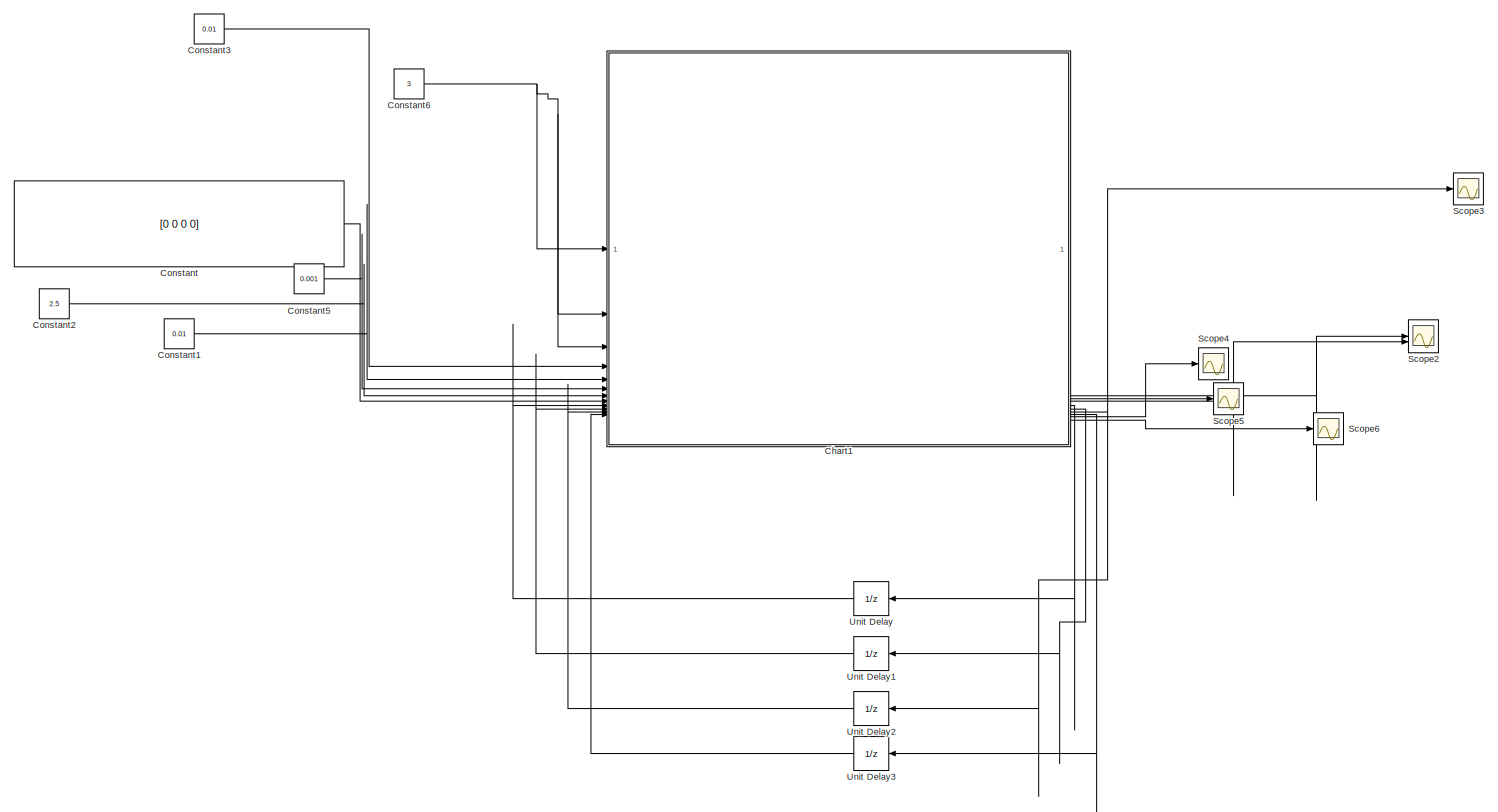
[diagram: root canvas - part 1/1, most of the canvas]
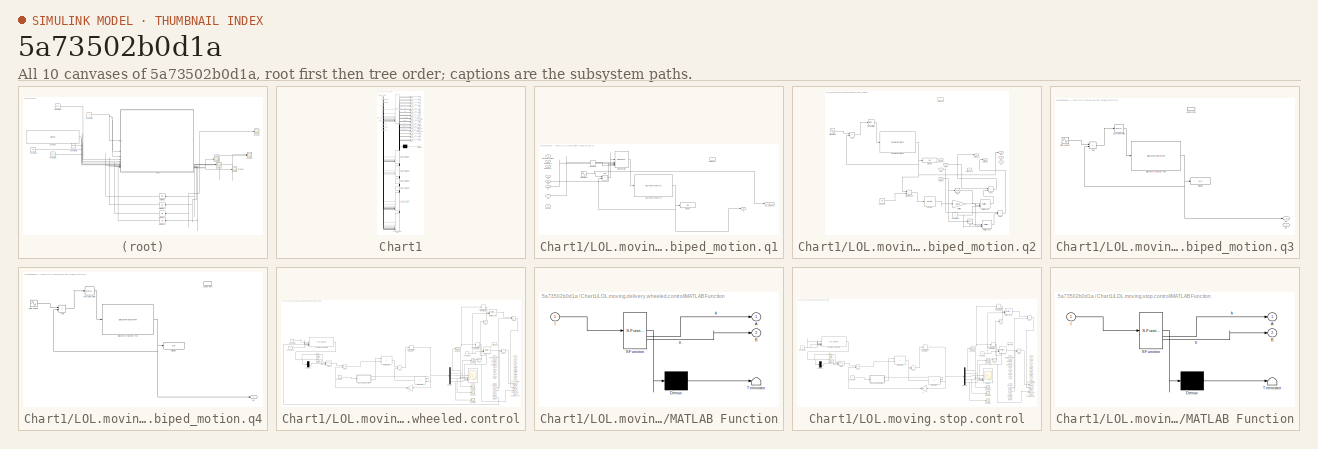
[diagram: thumbnail index - all 10 canvases of the model, root first then tree order]
MODEL slx_5a73502b0d1a
KIND model
CONFIG AbsTol = auto
CONFIG EnableMultiTasking = off
CONFIG FixedStep = auto
CONFIG MaxStep = auto
CONFIG MinStep = auto
CONFIG RelTol = 1e-3
CONFIG SampleTimeConstraint = Unconstrained
CONFIG SolverName = VariableStepAuto
CONFIG StartTime = 0.0
CONFIG StopTime = 10.0
BLOCK [SubSystem] Chart1
  ErrorFcn = Stateflow.Translate.translate
  PermitHierarchicalResolution = ExplicitOnly
  SFBlockType = Chart
  TreatAsAtomicUnit = on
BLOCK [Demux] Chart1/ Demux 
  Outputs = 1
BLOCK [Merge] Chart1/ Merge 
  Inputs = 4
BLOCK [Merge] Chart1/ Merge 1
  Inputs = 4
BLOCK [Merge] Chart1/ Merge 10
  Inputs = 3
BLOCK [Merge] Chart1/ Merge 11
  Inputs = 3
BLOCK [Merge] Chart1/ Merge 12
  Inputs = 3
BLOCK [Merge] Chart1/ Merge 13
  Inputs = 3
BLOCK [Merge] Chart1/ Merge 14
  Inputs = 3
BLOCK [Merge] Chart1/ Merge 2
  Inputs = 4
BLOCK [Merge] Chart1/ Merge 3
  Inputs = 4
BLOCK [Merge] Chart1/ Merge 4
  Inputs = 4
BLOCK [Merge] Chart1/ Merge 5
BLOCK [Merge] Chart1/ Merge 6
  Inputs = 3
BLOCK [Merge] Chart1/ Merge 7
  Inputs = 4
BLOCK [Merge] Chart1/ Merge 8
  Inputs = 3
BLOCK [Merge] Chart1/ Merge 9
  Inputs = 3
BLOCK [S-Function] Chart1/ SFunction 
  EnableBusSupport = on
  FunctionName = sf_sfun
  PortCounts = [12 16]
  SFcnIsStateOwnerBlock = off
  SFunctionDeploymentMode = off
  Tag = Stateflow S-Function 6
BLOCK [Terminator] Chart1/ Terminator 
BLOCK [SubSystem] Chart1/LOL.moving.delivery.biped_motion.q1
  PreDeleteFcn = Stateflow.SLINSF.SimulinkMan.removePreDeleteFcn
  UndoDeleteFcn = Stateflow.SLINSF.SimulinkMan.restorePreDeleteFcn
BLOCK [ActionPort] Chart1/LOL.moving.delivery.biped_motion.q1/Action Port
  CopyFcn = Stateflow.SLINSF.SimulinkMan.removeBlockPreDeleteFcn
  PreDeleteFcn = Stateflow.SLINSF.SimulinkMan.unsafePredeleteFcn
BLOCK [Sum] Chart1/LOL.moving.delivery.biped_motion.q1/Add
  IconShape = rectangular
  Inputs = +-
BLOCK [Constant] Chart1/LOL.moving.delivery.biped_motion.q1/Constant
BLOCK [DiscreteTransferFcn] Chart1/LOL.moving.delivery.biped_motion.q1/Discrete Transfer Fcn
  Denominator = [1 -1.161 0.1678 -0.006671]
  InputPortMap = u0
  Numerator = [0 0.2564 -0.03482 0.001414]
  SampleTime = 0.1
BLOCK [Display] Chart1/LOL.moving.delivery.biped_motion.q1/Display
  Decimation = 1
BLOCK [Reference] Chart1/LOL.moving.delivery.biped_motion.q1/PID Controller  REF=slpidlib/PID Controller
  LibrarySourceBlock = simulink/Continuous/PID Controller
  SourceBlock = slpidlib/PID Controller
  SourceType = PID 1dof
BLOCK [Sin] Chart1/LOL.moving.delivery.biped_motion.q1/Sine Wave
  Amplitude = 20*pi/180
  SampleTime = 0.1
  SineType = Sample based
BLOCK [Inport] Chart1/LOL.moving.delivery.biped_motion.q1/Ts
  Port = 4
BLOCK [Inport] Chart1/LOL.moving.delivery.biped_motion.q1/desired_height
BLOCK [Inport] Chart1/LOL.moving.delivery.biped_motion.q1/desired_x
  Port = 2
BLOCK [Inport] Chart1/LOL.moving.delivery.biped_motion.q1/desired_y
  Port = 3
BLOCK [Inport] Chart1/LOL.moving.delivery.biped_motion.q1/kd
  Port = 5
BLOCK [Inport] Chart1/LOL.moving.delivery.biped_motion.q1/ki
  Port = 6
BLOCK [Inport] Chart1/LOL.moving.delivery.biped_motion.q1/kp
  Port = 7
BLOCK [Outport] Chart1/LOL.moving.delivery.biped_motion.q1/q1
BLOCK [Outport] Chart1/LOL.moving.delivery.biped_motion.q1/q1_desired
  Port = 2
BLOCK [Inport] Chart1/LOL.moving.delivery.biped_motion.q1/sensor
  Port = 8
BLOCK [SubSystem] Chart1/LOL.moving.delivery.biped_motion.q2
  PreDeleteFcn = Stateflow.SLINSF.SimulinkMan.removePreDeleteFcn
  UndoDeleteFcn = Stateflow.SLINSF.SimulinkMan.restorePreDeleteFcn
BLOCK [ActionPort] Chart1/LOL.moving.delivery.biped_motion.q2/Action Port
  CopyFcn = Stateflow.SLINSF.SimulinkMan.removeBlockPreDeleteFcn
  PreDeleteFcn = Stateflow.SLINSF.SimulinkMan.unsafePredeleteFcn
BLOCK [Sum] Chart1/LOL.moving.delivery.biped_motion.q2/Add
  IconShape = rectangular
  Inputs = +-
BLOCK [Sum] Chart1/LOL.moving.delivery.biped_motion.q2/Add1
  IconShape = rectangular
BLOCK [Sum] Chart1/LOL.moving.delivery.biped_motion.q2/Add2
  IconShape = rectangular
BLOCK [Constant] Chart1/LOL.moving.delivery.biped_motion.q2/Constant
  Value = 0.5
BLOCK [Constant] Chart1/LOL.moving.delivery.biped_motion.q2/Constant1
  Value = 0
BLOCK [Trigonometry] Chart1/LOL.moving.delivery.biped_motion.q2/Cos
  Operator = cos
BLOCK [Reference] Chart1/LOL.moving.delivery.biped_motion.q2/Counter  REF=dspswit3/Counter
  SourceBlock = dspswit3/Counter
  SourceType = Counter
BLOCK [DiscreteTransferFcn] Chart1/LOL.moving.delivery.biped_motion.q2/Discrete Transfer Fcn
  Denominator = [1 -1.161 0.1678 -0.006671]
  InputPortMap = u0
  Numerator = [0 0.2564 -0.03482 0.001414]
  SampleTime = 0.1
BLOCK [Display] Chart1/LOL.moving.delivery.biped_motion.q2/Display
  Decimation = 1
BLOCK [RelationalOperator] Chart1/LOL.moving.delivery.biped_motion.q2/GreaterThan
  InputSameDT = off
  Operator = >
  OutDataTypeStr = boolean
  RndMeth = Simplest
BLOCK [Gain] Chart1/LOL.moving.delivery.biped_motion.q2/Multiply
  Gain = 0.654
BLOCK [Reference] Chart1/LOL.moving.delivery.biped_motion.q2/Multiply-Add  REF=hdlsllib/HDL Operations/Multiply-Add
  SourceBlock = hdlsllib/HDL Operations/Multiply-Add
  SourceType = Multiply-Add
BLOCK [Reference] Chart1/LOL.moving.delivery.biped_motion.q2/Multiply-Add1  REF=hdlsllib/HDL Operations/Multiply-Add
  SourceBlock = hdlsllib/HDL Operations/Multiply-Add
  SourceType = Multiply-Add
BLOCK [Reference] Chart1/LOL.moving.delivery.biped_motion.q2/PID Controller  REF=slpidlib/PID Controller
  LibrarySourceBlock = simulink/Continuous/PID Controller
  SourceBlock = slpidlib/PID Controller
  SourceType = PID 1dof
BLOCK [Trigonometry] Chart1/LOL.moving.delivery.biped_motion.q2/Sin
BLOCK [Sin] Chart1/LOL.moving.delivery.biped_motion.q2/Sine Wave
  Amplitude = 30*pi/180
  Bias = 30*pi/180
  Offset = 2
  SampleTime = 0.1
  SineType = Sample based
BLOCK [Inport] Chart1/LOL.moving.delivery.biped_motion.q2/curr_phi
  Port = 4
BLOCK [Inport] Chart1/LOL.moving.delivery.biped_motion.q2/curr_x
  Port = 2
BLOCK [Inport] Chart1/LOL.moving.delivery.biped_motion.q2/curr_y
  Port = 3
BLOCK [Outport] Chart1/LOL.moving.delivery.biped_motion.q2/current_phi
  Port = 3
BLOCK [Outport] Chart1/LOL.moving.delivery.biped_motion.q2/current_x
BLOCK [Outport] Chart1/LOL.moving.delivery.biped_motion.q2/current_y
  Port = 2
BLOCK [Outport] Chart1/LOL.moving.delivery.biped_motion.q2/q2
  Port = 4
BLOCK [Outport] Chart1/LOL.moving.delivery.biped_motion.q2/q3
  Port = 5
BLOCK [Outport] Chart1/LOL.moving.delivery.biped_motion.q2/q4
  Port = 6
BLOCK [Inport] Chart1/LOL.moving.delivery.biped_motion.q2/sensor
BLOCK [SubSystem] Chart1/LOL.moving.delivery.biped_motion.q3
  PreDeleteFcn = Stateflow.SLINSF.SimulinkMan.removePreDeleteFcn
  UndoDeleteFcn = Stateflow.SLINSF.SimulinkMan.restorePreDeleteFcn
BLOCK [ActionPort] Chart1/LOL.moving.delivery.biped_motion.q3/Action Port
  CopyFcn = Stateflow.SLINSF.SimulinkMan.removeBlockPreDeleteFcn
  PreDeleteFcn = Stateflow.SLINSF.SimulinkMan.unsafePredeleteFcn
BLOCK [Sum] Chart1/LOL.moving.delivery.biped_motion.q3/Add
  IconShape = rectangular
  Inputs = +-
BLOCK [DiscreteTransferFcn] Chart1/LOL.moving.delivery.biped_motion.q3/Discrete Transfer Fcn
  Denominator = [1 -1.161 0.1678 -0.006671]
  InputPortMap = u0
  Numerator = [0 0.2564 -0.03482 0.001414]
  SampleTime = 0.1
BLOCK [Display] Chart1/LOL.moving.delivery.biped_motion.q3/Display
  Decimation = 1
BLOCK [Reference] Chart1/LOL.moving.delivery.biped_motion.q3/PID Controller  REF=slpidlib/PID Controller
  LibrarySourceBlock = simulink/Continuous/PID Controller
  SourceBlock = slpidlib/PID Controller
  SourceType = PID 1dof
BLOCK [Sin] Chart1/LOL.moving.delivery.biped_motion.q3/Sine Wave
  Amplitude = 20*pi/180
  Offset = 10
  SampleTime = 0.1
  SineType = Sample based
BLOCK [Outport] Chart1/LOL.moving.delivery.biped_motion.q3/q3
BLOCK [Outport] Chart1/LOL.moving.delivery.biped_motion.q3/q4
  Port = 2
BLOCK [SubSystem] Chart1/LOL.moving.delivery.biped_motion.q4
  PreDeleteFcn = Stateflow.SLINSF.SimulinkMan.removePreDeleteFcn
  UndoDeleteFcn = Stateflow.SLINSF.SimulinkMan.restorePreDeleteFcn
BLOCK [ActionPort] Chart1/LOL.moving.delivery.biped_motion.q4/Action Port
  CopyFcn = Stateflow.SLINSF.SimulinkMan.removeBlockPreDeleteFcn
  PreDeleteFcn = Stateflow.SLINSF.SimulinkMan.unsafePredeleteFcn
BLOCK [Sum] Chart1/LOL.moving.delivery.biped_motion.q4/Add
  IconShape = rectangular
  Inputs = +-
BLOCK [DiscreteTransferFcn] Chart1/LOL.moving.delivery.biped_motion.q4/Discrete Transfer Fcn
  Denominator = [1 -1.161 0.1678 -0.006671]
  InputPortMap = u0
  Numerator = [0 0.2564 -0.03482 0.001414]
  SampleTime = 0.1
BLOCK [Display] Chart1/LOL.moving.delivery.biped_motion.q4/Display
  Decimation = 1
BLOCK [Reference] Chart1/LOL.moving.delivery.biped_motion.q4/PID Controller  REF=slpidlib/PID Controller
  LibrarySourceBlock = simulink/Continuous/PID Controller
  SourceBlock = slpidlib/PID Controller
  SourceType = PID 1dof
BLOCK [Sin] Chart1/LOL.moving.delivery.biped_motion.q4/Sine Wave
  Amplitude = 30*pi/180
  Offset = 12
  SampleTime = 0.1
  SineType = Sample based
BLOCK [Outport] Chart1/LOL.moving.delivery.biped_motion.q4/q4
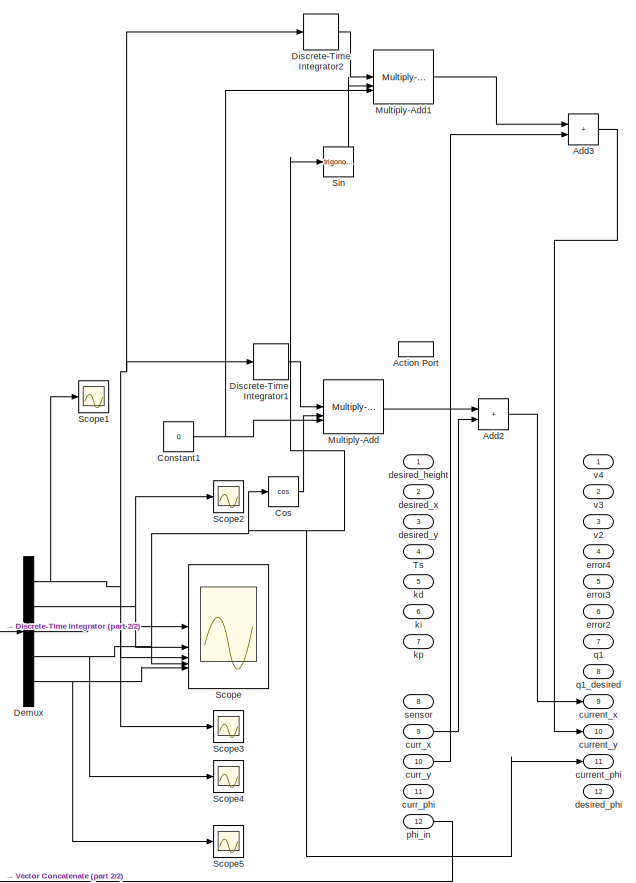
[diagram: Chart1/LOL.moving.delivery.wheeled.control - part 1/2, right side, full height]
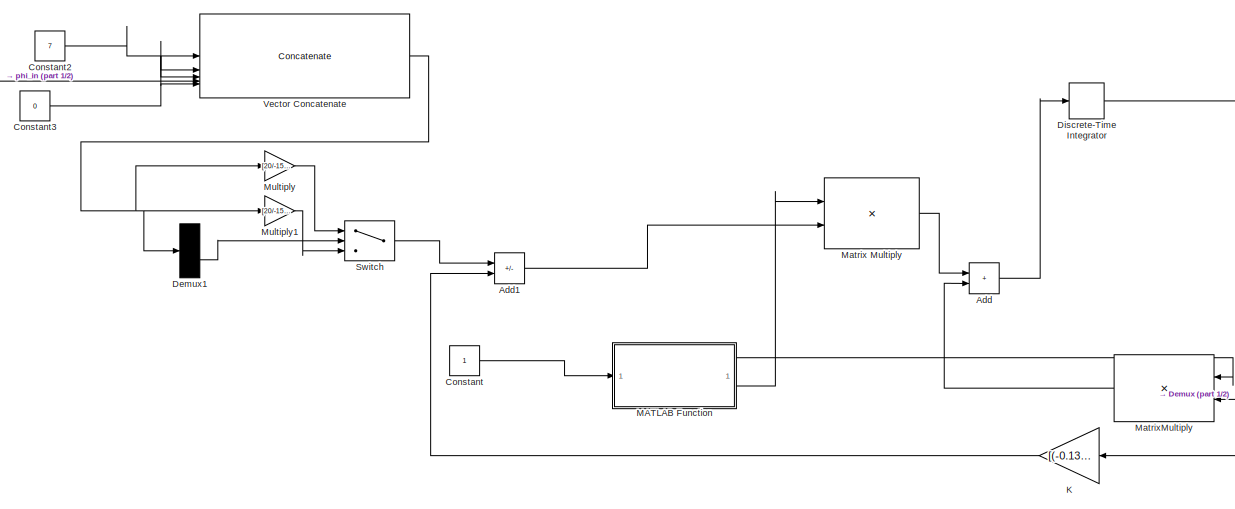
[diagram: Chart1/LOL.moving.delivery.wheeled.control - part 2/2, middle left region]
BLOCK [SubSystem] Chart1/LOL.moving.delivery.wheeled.control
  PreDeleteFcn = Stateflow.SLINSF.SimulinkMan.removePreDeleteFcn
  UndoDeleteFcn = Stateflow.SLINSF.SimulinkMan.restorePreDeleteFcn
BLOCK [ActionPort] Chart1/LOL.moving.delivery.wheeled.control/Action Port
  CopyFcn = Stateflow.SLINSF.SimulinkMan.removeBlockPreDeleteFcn
  PreDeleteFcn = Stateflow.SLINSF.SimulinkMan.unsafePredeleteFcn
BLOCK [Sum] Chart1/LOL.moving.delivery.wheeled.control/Add
  IconShape = rectangular
BLOCK [Sum] Chart1/LOL.moving.delivery.wheeled.control/Add1
  IconShape = rectangular
  Inputs = +-
BLOCK [Sum] Chart1/LOL.moving.delivery.wheeled.control/Add2
  IconShape = rectangular
BLOCK [Sum] Chart1/LOL.moving.delivery.wheeled.control/Add3
  IconShape = rectangular
BLOCK [Constant] Chart1/LOL.moving.delivery.wheeled.control/Constant
BLOCK [Constant] Chart1/LOL.moving.delivery.wheeled.control/Constant1
  Value = 0
BLOCK [Constant] Chart1/LOL.moving.delivery.wheeled.control/Constant2
  Value = 7
BLOCK [Constant] Chart1/LOL.moving.delivery.wheeled.control/Constant3
  Value = 0
BLOCK [Trigonometry] Chart1/LOL.moving.delivery.wheeled.control/Cos
  Operator = cos
BLOCK [Demux] Chart1/LOL.moving.delivery.wheeled.control/Demux
  Outputs = 5
BLOCK [Demux] Chart1/LOL.moving.delivery.wheeled.control/Demux1
  Outputs = 5
BLOCK [DiscreteIntegrator] Chart1/LOL.moving.delivery.wheeled.control/Discrete-Time Integrator
  ICPrevOutput = DiscIntNeverNeededParam
  ICPrevScaledInput = DiscIntNeverNeededParam
  InitialConditionSetting = Auto
  SampleTime = -1
BLOCK [DiscreteIntegrator] Chart1/LOL.moving.delivery.wheeled.control/Discrete-Time Integrator1
  ICPrevOutput = DiscIntNeverNeededParam
  ICPrevScaledInput = DiscIntNeverNeededParam
  InitialConditionSetting = Auto
  SampleTime = -1
BLOCK [DiscreteIntegrator] Chart1/LOL.moving.delivery.wheeled.control/Discrete-Time Integrator2
  ICPrevOutput = DiscIntNeverNeededParam
  ICPrevScaledInput = DiscIntNeverNeededParam
  InitialConditionSetting = Auto
  SampleTime = -1
BLOCK [Gain] Chart1/LOL.moving.delivery.wheeled.control/K
  Gain = [(-0.134944E0),(-0.371525E1),(-0.913882E0),(-0.137452E0),(-0.125089E0);0.90514E-3,(-0.273949E1),(-0.607007E0),0.177831E0,0.115767E0]
  Multiplication = Matrix(K*u)
BLOCK [SubSystem] Chart1/LOL.moving.delivery.wheeled.control/MATLAB Function
  ErrorFcn = Stateflow.Translate.translate
  LibrarySourceBlock = simulink/User-Defined\nFunctions/MATLAB Function
  PermitHierarchicalResolution = ExplicitOnly
  SFBlockType = MATLAB Function
  TreatAsAtomicUnit = on
BLOCK [Demux] Chart1/LOL.moving.delivery.wheeled.control/MATLAB Function/ Demux 
  Outputs = 1
BLOCK [S-Function] Chart1/LOL.moving.delivery.wheeled.control/MATLAB Function/ SFunction 
  EnableBusSupport = on
  FunctionName = sf_sfun
  PortCounts = [1 3]
  SFcnIsStateOwnerBlock = off
  SFunctionDeploymentMode = off
  Tag = Stateflow S-Function 7
BLOCK [Terminator] Chart1/LOL.moving.delivery.wheeled.control/MATLAB Function/ Terminator 
BLOCK [Outport] Chart1/LOL.moving.delivery.wheeled.control/MATLAB Function/A
BLOCK [Outport] Chart1/LOL.moving.delivery.wheeled.control/MATLAB Function/B
  Port = 2
BLOCK [Inport] Chart1/LOL.moving.delivery.wheeled.control/MATLAB Function/l
BLOCK [Product] Chart1/LOL.moving.delivery.wheeled.control/Matrix Multiply
  Multiplication = Matrix(*)
BLOCK [Product] Chart1/LOL.moving.delivery.wheeled.control/MatrixMultiply
  Multiplication = Matrix(*)
BLOCK [Gain] Chart1/LOL.moving.delivery.wheeled.control/Multiply
  Gain = [20/-150 1 1 -0.0651 1;0 1 1 3/16 1]
  Multiplication = Matrix(K*u)
BLOCK [Reference] Chart1/LOL.moving.delivery.wheeled.control/Multiply-Add  REF=hdlsllib/HDL Operations/Multiply-Add
  SourceBlock = hdlsllib/HDL Operations/Multiply-Add
  SourceType = Multiply-Add
BLOCK [Reference] Chart1/LOL.moving.delivery.wheeled.control/Multiply-Add1  REF=hdlsllib/HDL Operations/Multiply-Add
  SourceBlock = hdlsllib/HDL Operations/Multiply-Add
  SourceType = Multiply-Add
BLOCK [Gain] Chart1/LOL.moving.delivery.wheeled.control/Multiply1
  Gain = [20/-150 1 1 -0.0681 1;0.0028 1 1 3/16 1]
  Multiplication = Matrix(K*u)
BLOCK [Scope] Chart1/LOL.moving.delivery.wheeled.control/Scope
  Floating = off
  NumInputPorts = 5
  ScopeSpecificationString = Simulink.scopes.TimeScopeBlockCfg('CurrentConfiguration', extmgr.ConfigurationSet(extmgr.Configuration('Core','General UI',true),extmgr.Configuration('Core','Source UI',true),extmgr.Configuration('Sources','WiredSimulink',true,'DataLoggingVariableName','ScopeData1'),extmgr.Configuration('Visuals','Time Domain',true,'SerializedDisplays',{struct('MinYLimReal','-14739157392290897920.00000','MaxYLimRe...<+1633ch>
BLOCK [Scope] Chart1/LOL.moving.delivery.wheeled.control/Scope1
  Floating = off
  NumInputPorts = 1
  ScopeSpecificationString = Simulink.scopes.TimeScopeBlockCfg('CurrentConfiguration', extmgr.ConfigurationSet(extmgr.Configuration('Core','General UI',true),extmgr.Configuration('Core','Source UI',true),extmgr.Configuration('Sources','WiredSimulink',true,'DataLoggingVariableName','ScopeData2'),extmgr.Configuration('Visuals','Time Domain',true,'SerializedDisplays',{struct('MinYLimReal','-1.00000','MaxYLimReal','1.00000','YLab...<+1444ch>
BLOCK [Scope] Chart1/LOL.moving.delivery.wheeled.control/Scope2
  Floating = off
  NumInputPorts = 1
  ScopeSpecificationString = Simulink.scopes.TimeScopeBlockCfg('CurrentConfiguration', extmgr.ConfigurationSet(extmgr.Configuration('Core','General UI',true),extmgr.Configuration('Core','Source UI',true),extmgr.Configuration('Sources','WiredSimulink',true,'DataLoggingVariableName','ScopeData3'),extmgr.Configuration('Visuals','Time Domain',true,'SerializedDisplays',{struct('MinYLimReal','-0.07483','MaxYLimReal','0.52171','YLab...<+1366ch>
BLOCK [Scope] Chart1/LOL.moving.delivery.wheeled.control/Scope3
  Floating = off
  NumInputPorts = 1
  ScopeSpecificationString = Simulink.scopes.TimeScopeBlockCfg('CurrentConfiguration', extmgr.ConfigurationSet(extmgr.Configuration('Core','General UI',true),extmgr.Configuration('Core','Source UI',true),extmgr.Configuration('Sources','WiredSimulink',true,'DataLoggingVariableName','ScopeData4'),extmgr.Configuration('Visuals','Time Domain',true,'SerializedDisplays',{struct('MinYLimReal','-0.37142','MaxYLimReal','0.77989','YLab...<+1395ch>
BLOCK [Scope] Chart1/LOL.moving.delivery.wheeled.control/Scope4
  Floating = off
  NumInputPorts = 1
  ScopeSpecificationString = Simulink.scopes.TimeScopeBlockCfg('CurrentConfiguration', extmgr.ConfigurationSet(extmgr.Configuration('Core','General UI',true),extmgr.Configuration('Core','Source UI',true),extmgr.Configuration('Sources','WiredSimulink',true,'DataLoggingVariableName','ScopeData5'),extmgr.Configuration('Visuals','Time Domain',true,'SerializedDisplays',{struct('MinYLimReal','-1.00000','MaxYLimReal','1.00000','YLab...<+1421ch>
BLOCK [Scope] Chart1/LOL.moving.delivery.wheeled.control/Scope5
  Floating = off
  NumInputPorts = 1
  ScopeSpecificationString = Simulink.scopes.TimeScopeBlockCfg('CurrentConfiguration', extmgr.ConfigurationSet(extmgr.Configuration('Core','General UI',true),extmgr.Configuration('Core','Source UI',true),extmgr.Configuration('Sources','WiredSimulink',true,'DataLoggingVariableName','ScopeData6'),extmgr.Configuration('Visuals','Time Domain',true,'SerializedDisplays',{struct('MinYLimReal','-2.05158','MaxYLimReal','0.39544','YLab...<+1366ch>
BLOCK [Trigonometry] Chart1/LOL.moving.delivery.wheeled.control/Sin
BLOCK [Switch] Chart1/LOL.moving.delivery.wheeled.control/Switch
  InputSameDT = off
  SaturateOnIntegerOverflow = off
BLOCK [Inport] Chart1/LOL.moving.delivery.wheeled.control/Ts
  Port = 4
BLOCK [Concatenate] Chart1/LOL.moving.delivery.wheeled.control/Vector Concatenate
  NumInputs = 5
BLOCK [Inport] Chart1/LOL.moving.delivery.wheeled.control/curr_phi
  Port = 11
BLOCK [Inport] Chart1/LOL.moving.delivery.wheeled.control/curr_x
  Port = 9
BLOCK [Inport] Chart1/LOL.moving.delivery.wheeled.control/curr_y
  Port = 10
BLOCK [Outport] Chart1/LOL.moving.delivery.wheeled.control/current_phi
  Port = 11
BLOCK [Outport] Chart1/LOL.moving.delivery.wheeled.control/current_x
  Port = 9
BLOCK [Outport] Chart1/LOL.moving.delivery.wheeled.control/current_y
  Port = 10
BLOCK [Inport] Chart1/LOL.moving.delivery.wheeled.control/desired_height
BLOCK [Outport] Chart1/LOL.moving.delivery.wheeled.control/desired_phi
  Port = 12
BLOCK [Inport] Chart1/LOL.moving.delivery.wheeled.control/desired_x
  Port = 2
BLOCK [Inport] Chart1/LOL.moving.delivery.wheeled.control/desired_y
  Port = 3
BLOCK [Outport] Chart1/LOL.moving.delivery.wheeled.control/error2
  Port = 6
BLOCK [Outport] Chart1/LOL.moving.delivery.wheeled.control/error3
  Port = 5
BLOCK [Outport] Chart1/LOL.moving.delivery.wheeled.control/error4
  Port = 4
BLOCK [Inport] Chart1/LOL.moving.delivery.wheeled.control/kd
  Port = 5
BLOCK [Inport] Chart1/LOL.moving.delivery.wheeled.control/ki
  Port = 6
BLOCK [Inport] Chart1/LOL.moving.delivery.wheeled.control/kp
  Port = 7
BLOCK [Inport] Chart1/LOL.moving.delivery.wheeled.control/phi_in
  Port = 12
BLOCK [Outport] Chart1/LOL.moving.delivery.wheeled.control/q1
  Port = 7
BLOCK [Outport] Chart1/LOL.moving.delivery.wheeled.control/q1_desired
  Port = 8
BLOCK [Inport] Chart1/LOL.moving.delivery.wheeled.control/sensor
  Port = 8
BLOCK [Outport] Chart1/LOL.moving.delivery.wheeled.control/v2
  Port = 3
BLOCK [Outport] Chart1/LOL.moving.delivery.wheeled.control/v3
  Port = 2
BLOCK [Outport] Chart1/LOL.moving.delivery.wheeled.control/v4
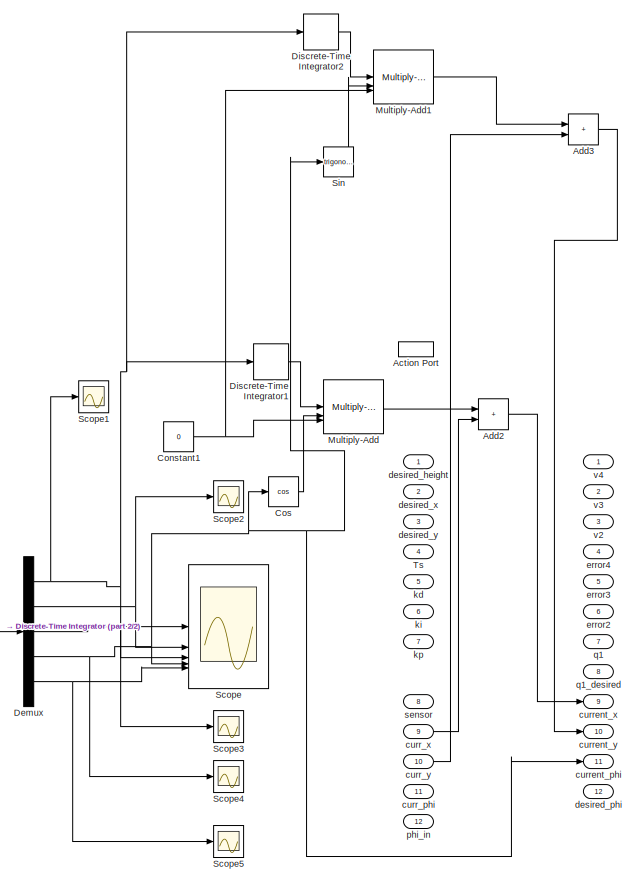
[diagram: Chart1/LOL.moving.stop.control - part 1/2, right side, full height]
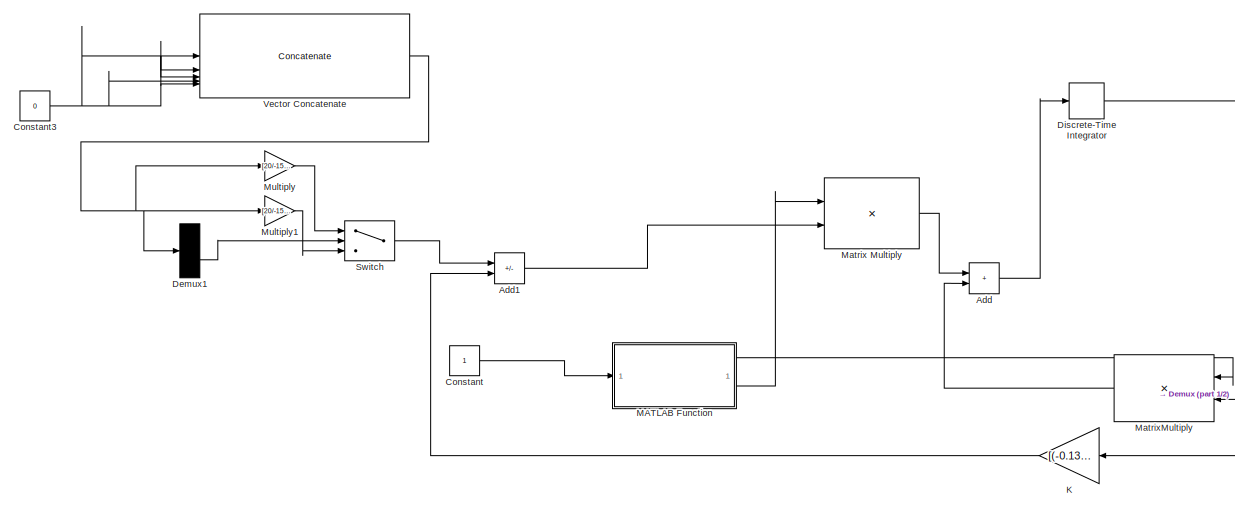
[diagram: Chart1/LOL.moving.stop.control - part 2/2, middle left region]
BLOCK [SubSystem] Chart1/LOL.moving.stop.control
  PreDeleteFcn = Stateflow.SLINSF.SimulinkMan.removePreDeleteFcn
  UndoDeleteFcn = Stateflow.SLINSF.SimulinkMan.restorePreDeleteFcn
BLOCK [ActionPort] Chart1/LOL.moving.stop.control/Action Port
  CopyFcn = Stateflow.SLINSF.SimulinkMan.removeBlockPreDeleteFcn
  PreDeleteFcn = Stateflow.SLINSF.SimulinkMan.unsafePredeleteFcn
BLOCK [Sum] Chart1/LOL.moving.stop.control/Add
  IconShape = rectangular
BLOCK [Sum] Chart1/LOL.moving.stop.control/Add1
  IconShape = rectangular
  Inputs = +-
BLOCK [Sum] Chart1/LOL.moving.stop.control/Add2
  IconShape = rectangular
BLOCK [Sum] Chart1/LOL.moving.stop.control/Add3
  IconShape = rectangular
BLOCK [Constant] Chart1/LOL.moving.stop.control/Constant
BLOCK [Constant] Chart1/LOL.moving.stop.control/Constant1
  Value = 0
BLOCK [Constant] Chart1/LOL.moving.stop.control/Constant3
  Value = 0
BLOCK [Trigonometry] Chart1/LOL.moving.stop.control/Cos
  Operator = cos
BLOCK [Demux] Chart1/LOL.moving.stop.control/Demux
  Outputs = 5
BLOCK [Demux] Chart1/LOL.moving.stop.control/Demux1
  Outputs = 5
BLOCK [DiscreteIntegrator] Chart1/LOL.moving.stop.control/Discrete-Time Integrator
  ICPrevOutput = DiscIntNeverNeededParam
  ICPrevScaledInput = DiscIntNeverNeededParam
  InitialConditionSetting = Auto
  SampleTime = -1
BLOCK [DiscreteIntegrator] Chart1/LOL.moving.stop.control/Discrete-Time Integrator1
  ICPrevOutput = DiscIntNeverNeededParam
  ICPrevScaledInput = DiscIntNeverNeededParam
  InitialConditionSetting = Auto
  SampleTime = -1
BLOCK [DiscreteIntegrator] Chart1/LOL.moving.stop.control/Discrete-Time Integrator2
  ICPrevOutput = DiscIntNeverNeededParam
  ICPrevScaledInput = DiscIntNeverNeededParam
  InitialConditionSetting = Auto
  SampleTime = -1
BLOCK [Gain] Chart1/LOL.moving.stop.control/K
  Gain = [(-0.134944E0),(-0.371525E1),(-0.913882E0),(-0.137452E0),(-0.125089E0);0.90514E-3,(-0.273949E1),(-0.607007E0),0.177831E0,0.115767E0]
  Multiplication = Matrix(K*u)
BLOCK [SubSystem] Chart1/LOL.moving.stop.control/MATLAB Function
  ErrorFcn = Stateflow.Translate.translate
  LibrarySourceBlock = simulink/User-Defined\nFunctions/MATLAB Function
  PermitHierarchicalResolution = ExplicitOnly
  SFBlockType = MATLAB Function
  TreatAsAtomicUnit = on
BLOCK [Demux] Chart1/LOL.moving.stop.control/MATLAB Function/ Demux 
  Outputs = 1
BLOCK [S-Function] Chart1/LOL.moving.stop.control/MATLAB Function/ SFunction 
  EnableBusSupport = on
  FunctionName = sf_sfun
  PortCounts = [1 3]
  SFcnIsStateOwnerBlock = off
  SFunctionDeploymentMode = off
  Tag = Stateflow S-Function 5
BLOCK [Terminator] Chart1/LOL.moving.stop.control/MATLAB Function/ Terminator 
BLOCK [Outport] Chart1/LOL.moving.stop.control/MATLAB Function/A
BLOCK [Outport] Chart1/LOL.moving.stop.control/MATLAB Function/B
  Port = 2
BLOCK [Inport] Chart1/LOL.moving.stop.control/MATLAB Function/l
BLOCK [Product] Chart1/LOL.moving.stop.control/Matrix Multiply
  Multiplication = Matrix(*)
BLOCK [Product] Chart1/LOL.moving.stop.control/MatrixMultiply
  Multiplication = Matrix(*)
BLOCK [Gain] Chart1/LOL.moving.stop.control/Multiply
  Gain = [20/-150 1 1 -0.0651 1;0 1 1 3/16 1]
  Multiplication = Matrix(K*u)
BLOCK [Reference] Chart1/LOL.moving.stop.control/Multiply-Add  REF=hdlsllib/HDL Operations/Multiply-Add
  SourceBlock = hdlsllib/HDL Operations/Multiply-Add
  SourceType = Multiply-Add
BLOCK [Reference] Chart1/LOL.moving.stop.control/Multiply-Add1  REF=hdlsllib/HDL Operations/Multiply-Add
  SourceBlock = hdlsllib/HDL Operations/Multiply-Add
  SourceType = Multiply-Add
BLOCK [Gain] Chart1/LOL.moving.stop.control/Multiply1
  Gain = [20/-150 1 1 -0.0681 1;0.0028 1 1 3/16 1]
  Multiplication = Matrix(K*u)
BLOCK [Scope] Chart1/LOL.moving.stop.control/Scope
  Floating = off
  NumInputPorts = 5
  ScopeSpecificationString = Simulink.scopes.TimeScopeBlockCfg('CurrentConfiguration', extmgr.ConfigurationSet(extmgr.Configuration('Core','General UI',true),extmgr.Configuration('Core','Source UI',true),extmgr.Configuration('Sources','WiredSimulink',true,'DataLoggingVariableName','ScopeData1'),extmgr.Configuration('Visuals','Time Domain',true,'SerializedDisplays',{struct('MinYLimReal','-14739157392290897920.00000','MaxYLimRe...<+1633ch>
BLOCK [Scope] Chart1/LOL.moving.stop.control/Scope1
  Floating = off
  NumInputPorts = 1
  ScopeSpecificationString = Simulink.scopes.TimeScopeBlockCfg('CurrentConfiguration', extmgr.ConfigurationSet(extmgr.Configuration('Core','General UI',true),extmgr.Configuration('Core','Source UI',true),extmgr.Configuration('Sources','WiredSimulink',true,'DataLoggingVariableName','ScopeData2'),extmgr.Configuration('Visuals','Time Domain',true,'SerializedDisplays',{struct('MinYLimReal','-1.7445','MaxYLimReal','10.13745','YLab...<+1446ch>
BLOCK [Scope] Chart1/LOL.moving.stop.control/Scope2
  Floating = off
  NumInputPorts = 1
  ScopeSpecificationString = Simulink.scopes.TimeScopeBlockCfg('CurrentConfiguration', extmgr.ConfigurationSet(extmgr.Configuration('Core','General UI',true),extmgr.Configuration('Core','Source UI',true),extmgr.Configuration('Sources','WiredSimulink',true,'DataLoggingVariableName','ScopeData3'),extmgr.Configuration('Visuals','Time Domain',true,'SerializedDisplays',{struct('MinYLimReal','-0.07483','MaxYLimReal','0.52171','YLab...<+1366ch>
BLOCK [Scope] Chart1/LOL.moving.stop.control/Scope3
  Floating = off
  NumInputPorts = 1
  ScopeSpecificationString = Simulink.scopes.TimeScopeBlockCfg('CurrentConfiguration', extmgr.ConfigurationSet(extmgr.Configuration('Core','General UI',true),extmgr.Configuration('Core','Source UI',true),extmgr.Configuration('Sources','WiredSimulink',true,'DataLoggingVariableName','ScopeData4'),extmgr.Configuration('Visuals','Time Domain',true,'SerializedDisplays',{struct('MinYLimReal','-0.37142','MaxYLimReal','0.77989','YLab...<+1395ch>
BLOCK [Scope] Chart1/LOL.moving.stop.control/Scope4
  Floating = off
  NumInputPorts = 1
  ScopeSpecificationString = Simulink.scopes.TimeScopeBlockCfg('CurrentConfiguration', extmgr.ConfigurationSet(extmgr.Configuration('Core','General UI',true),extmgr.Configuration('Core','Source UI',true),extmgr.Configuration('Sources','WiredSimulink',true,'DataLoggingVariableName','ScopeData5'),extmgr.Configuration('Visuals','Time Domain',true,'SerializedDisplays',{struct('MinYLimReal','-3.79616','MaxYLimReal','0.44924','YLab...<+1421ch>
BLOCK [Scope] Chart1/LOL.moving.stop.control/Scope5
  Floating = off
  NumInputPorts = 1
  ScopeSpecificationString = Simulink.scopes.TimeScopeBlockCfg('CurrentConfiguration', extmgr.ConfigurationSet(extmgr.Configuration('Core','General UI',true),extmgr.Configuration('Core','Source UI',true),extmgr.Configuration('Sources','WiredSimulink',true,'DataLoggingVariableName','ScopeData6'),extmgr.Configuration('Visuals','Time Domain',true,'SerializedDisplays',{struct('MinYLimReal','-2.05158','MaxYLimReal','0.39544','YLab...<+1366ch>
BLOCK [Trigonometry] Chart1/LOL.moving.stop.control/Sin
BLOCK [Switch] Chart1/LOL.moving.stop.control/Switch
  InputSameDT = off
  SaturateOnIntegerOverflow = off
BLOCK [Inport] Chart1/LOL.moving.stop.control/Ts
  Port = 4
BLOCK [Concatenate] Chart1/LOL.moving.stop.control/Vector Concatenate
  NumInputs = 5
BLOCK [Inport] Chart1/LOL.moving.stop.control/curr_phi
  Port = 11
BLOCK [Inport] Chart1/LOL.moving.stop.control/curr_x
  Port = 9
BLOCK [Inport] Chart1/LOL.moving.stop.control/curr_y
  Port = 10
BLOCK [Outport] Chart1/LOL.moving.stop.control/current_phi
  Port = 11
BLOCK [Outport] Chart1/LOL.moving.stop.control/current_x
  Port = 9
BLOCK [Outport] Chart1/LOL.moving.stop.control/current_y
  Port = 10
BLOCK [Inport] Chart1/LOL.moving.stop.control/desired_height
BLOCK [Outport] Chart1/LOL.moving.stop.control/desired_phi
  Port = 12
BLOCK [Inport] Chart1/LOL.moving.stop.control/desired_x
  Port = 2
BLOCK [Inport] Chart1/LOL.moving.stop.control/desired_y
  Port = 3
BLOCK [Outport] Chart1/LOL.moving.stop.control/error2
  Port = 6
BLOCK [Outport] Chart1/LOL.moving.stop.control/error3
  Port = 5
BLOCK [Outport] Chart1/LOL.moving.stop.control/error4
  Port = 4
BLOCK [Inport] Chart1/LOL.moving.stop.control/kd
  Port = 5
BLOCK [Inport] Chart1/LOL.moving.stop.control/ki
  Port = 6
BLOCK [Inport] Chart1/LOL.moving.stop.control/kp
  Port = 7
BLOCK [Inport] Chart1/LOL.moving.stop.control/phi_in
  Port = 12
BLOCK [Outport] Chart1/LOL.moving.stop.control/q1
  Port = 7
BLOCK [Outport] Chart1/LOL.moving.stop.control/q1_desired
  Port = 8
BLOCK [Inport] Chart1/LOL.moving.stop.control/sensor
  Port = 8
BLOCK [Outport] Chart1/LOL.moving.stop.control/v2
  Port = 3
BLOCK [Outport] Chart1/LOL.moving.stop.control/v3
  Port = 2
BLOCK [Outport] Chart1/LOL.moving.stop.control/v4
BLOCK [Inport] Chart1/Ts
  Port = 4
BLOCK [Inport] Chart1/curr_phi
  Port = 11
BLOCK [Inport] Chart1/curr_x
  Port = 9
BLOCK [Inport] Chart1/curr_y
  Port = 10
BLOCK [Outport] Chart1/current_phi
  Port = 11
BLOCK [Outport] Chart1/current_x
  Port = 9
BLOCK [Outport] Chart1/current_y
  Port = 10
BLOCK [Inport] Chart1/desired_height
BLOCK [Outport] Chart1/desired_phi
  Port = 12
BLOCK [Inport] Chart1/desired_x
  Port = 2
BLOCK [Inport] Chart1/desired_y
  Port = 3
BLOCK [Outport] Chart1/error2
  Port = 6
BLOCK [Outport] Chart1/error3
  Port = 5
BLOCK [Outport] Chart1/error4
  Port = 4
BLOCK [Inport] Chart1/kd
  Port = 5
BLOCK [Inport] Chart1/ki
  Port = 6
BLOCK [Inport] Chart1/kp
  Port = 7
BLOCK [Inport] Chart1/phi_in
  Port = 12
BLOCK [Outport] Chart1/q1
  Port = 7
BLOCK [Outport] Chart1/q1_desired
  Port = 8
BLOCK [Outport] Chart1/q2
  Port = 13
BLOCK [Outport] Chart1/q3
  Port = 14
BLOCK [Outport] Chart1/q4
  Port = 15
BLOCK [Inport] Chart1/sensor
  Port = 8
BLOCK [Outport] Chart1/v2
  Port = 3
BLOCK [Outport] Chart1/v3
  Port = 2
BLOCK [Outport] Chart1/v4
BLOCK [Constant] Constant
  Value = [0 0 0 0]
BLOCK [Constant] Constant1
  Value = 0.01
BLOCK [Constant] Constant2
  Value = 2.5
BLOCK [Constant] Constant3
  Value = 0.01
BLOCK [Constant] Constant5
  Value = 0.001
BLOCK [Constant] Constant6
  Value = 3
BLOCK [Scope] Scope2
  Floating = off
  NumInputPorts = 2
  ScopeSpecificationString = Simulink.scopes.TimeScopeBlockCfg('CurrentConfiguration', extmgr.ConfigurationSet(extmgr.Configuration('Core','General UI',true),extmgr.Configuration('Core','Source UI',true),extmgr.Configuration('Sources','WiredSimulink',true,'DataLoggingVariableName','ScopeData4'),extmgr.Configuration('Visuals','Time Domain',true,'SerializedDisplays',{struct('MinYLimReal','-1.00000','MaxYLimReal','1.00000','YLab...<+1388ch>
BLOCK [Scope] Scope3
  Floating = off
  NumInputPorts = 1
  ScopeSpecificationString = Simulink.scopes.TimeScopeBlockCfg('CurrentConfiguration', extmgr.ConfigurationSet(extmgr.Configuration('Core','General UI',true),extmgr.Configuration('Core','Source UI',true),extmgr.Configuration('Sources','WiredSimulink',true,'DataLoggingVariableName','ScopeData5'),extmgr.Configuration('Visuals','Time Domain',true,'SerializedDisplays',{struct('MinYLimReal','-0.38631','MaxYLimReal','1.88843','YLab...<+1377ch>
BLOCK [Scope] Scope4
  Floating = off
  NumInputPorts = 1
  ScopeSpecificationString = Simulink.scopes.TimeScopeBlockCfg('CurrentConfiguration', extmgr.ConfigurationSet(extmgr.Configuration('Core','General UI',true),extmgr.Configuration('Core','Source UI',true),extmgr.Configuration('Sources','WiredSimulink',true,'DataLoggingVariableName','ScopeData1'),extmgr.Configuration('Visuals','Time Domain',true,'SerializedDisplays',{struct('MinYLimReal','-1.00000','MaxYLimReal','1.00000','YLab...<+1368ch>
BLOCK [Scope] Scope5
  Floating = off
  NumInputPorts = 1
  ScopeSpecificationString = Simulink.scopes.TimeScopeBlockCfg('CurrentConfiguration', extmgr.ConfigurationSet(extmgr.Configuration('Core','General UI',true),extmgr.Configuration('Core','Source UI',true),extmgr.Configuration('Sources','WiredSimulink',true,'DataLoggingVariableName','ScopeData2'),extmgr.Configuration('Visuals','Time Domain',true,'SerializedDisplays',{struct('MinYLimReal','-1.00000','MaxYLimReal','1.00000','YLab...<+1394ch>
BLOCK [Scope] Scope6
  Floating = off
  NumInputPorts = 1
  ScopeSpecificationString = Simulink.scopes.TimeScopeBlockCfg('CurrentConfiguration', extmgr.ConfigurationSet(extmgr.Configuration('Core','General UI',true),extmgr.Configuration('Core','Source UI',true),extmgr.Configuration('Sources','WiredSimulink',true,'DataLoggingVariableName','ScopeData3'),extmgr.Configuration('Visuals','Time Domain',true,'SerializedDisplays',{struct('MinYLimReal','-0.02983','MaxYLimReal','0.26843','YLab...<+1394ch>
BLOCK [UnitDelay] Unit Delay
  HasFrameUpgradeWarning = on
  SampleTime = -1
BLOCK [UnitDelay] Unit Delay1
  HasFrameUpgradeWarning = on
  SampleTime = -1
BLOCK [UnitDelay] Unit Delay2
  HasFrameUpgradeWarning = on
  SampleTime = -1
BLOCK [UnitDelay] Unit Delay3
  HasFrameUpgradeWarning = on
  SampleTime = -1
LINE Chart1:10 -> Unit Delay1:1
NET Chart1:11 -> Scope3:1, Unit Delay2:1
LINE Chart1:12 -> Unit Delay3:1
LINE Chart1:13 -> Scope4:1
LINE Chart1:14 -> Scope5:1
LINE Chart1:15 -> Scope6:1
LINE Chart1:7 -> Scope2:1
LINE Chart1:8 -> Scope2:2
LINE Chart1:9 -> Unit Delay:1
LINE Constant1:1 -> Chart1:5
LINE Constant2:1 -> Chart1:7
LINE Constant3:1 -> Chart1:4
LINE Constant5:1 -> Chart1:6
NET Constant6:1 -> Chart1:1, Chart1:2, Chart1:3
LINE Constant:1 -> Chart1:8
LINE Unit Delay1:1 -> Chart1:10
LINE Unit Delay2:1 -> Chart1:11
LINE Unit Delay3:1 -> Chart1:12
LINE Unit Delay:1 -> Chart1:9
note: NET lines group one-source signal fan-out (src -> all destinations, sorted); 1:1 wires keep LINE
CHART Chart1/LOL.moving.stop.control/MATLAB Function states=1 transitions=1
  STATE_LABEL 'eML_blk_kernel()'
  STATE_LABEL 'SCRIPT:\nfunction [A,B]= get_A_B(l)\nMw = 0.5;\nr = 0.2;\nm = 1;\nM = 1;\nIw = 0.00375;\nIp = 0.00631;\nIx = 0.0261;\nd = 0.45;\ng = 9.81;\nA=[0,g.*l.*m.*(Ip+2.*d.^2.*(Mw+Iw.*r.^(-2))).^(-1).*((-1).*Ip.*l.*M+ ...\n(-2).*d.^2.*l.*M.*Mw+(-2).*d.^2.*Iw.*l.*M.*r.^(-2)).*(Ix.*M+2.* ...\nIx.*Mw+2.*l.^2.*M.*Mw+2.*Iw.*Ix.*r.^(-2)+2.*Iw.*l.^2.*M.*r.^(-2)) ...\n.^(-1),0,0,0;0,0,1,0,0;0,g.*l.*m.*(M+2.*Mw+2.*Iw.*r.^(-2)).*...<+1266ch>'
CHART Chart1 states=14 transitions=13
  STATE_LABEL 'LOL'
  STATE_LABEL 'moving'
  STATE_LABEL 'delivery'
  STATE_LABEL 'biped_motion\nentry:\n'
  STATE_LABEL 'q1'
  STATE_LABEL 'q2'
  STATE_LABEL 'q3'
  STATE_LABEL 'q4'
  STATE_LABEL '[after(100,msec)]'
  STATE_LABEL '[after(300,msec)]'
  STATE_LABEL '[after(200,msec)]'
  STATE_LABEL '[after(400,msec)]'
  STATE_LABEL 'wheeled'
  STATE_LABEL 'control'
  STATE_LABEL '[tough_terrain==1]'
  STATE_LABEL '[tough_terrain==0]'
  STATE_LABEL 'stop'
  STATE_LABEL 'control'
  STATE_LABEL '[path_achieved == 1]'
  STATE_LABEL '[path_achieved == 0]'
  STATE_LABEL "obstact_detector\nentry:\npositions = sensor\nif sum(positions,'all')>30\n    tough_terrain=1\nelse\n    tough_terrain=0\n    flag=0\nend"
  STATE_LABEL 'Path_checker \nentry:\nif abs(curr_x-desired_x) <1\n    if abs(curr_y-desired_y) <1\n        path_achieved=1\n    end\nelse\n    path_achieved=0;\nend\n'
  STATE_LABEL 'moving'
  STATE_LABEL 'delivery'
  STATE_LABEL 'biped_motion\nentry:\n'
  STATE_LABEL 'q1'
  STATE_LABEL 'q2'
  STATE_LABEL 'q3'
  STATE_LABEL 'q4'
  STATE_LABEL '[after(100,msec)]'
  STATE_LABEL '[after(300,msec)]'
  STATE_LABEL '[after(200,msec)]'
  STATE_LABEL '[after(400,msec)]'
  STATE_LABEL 'wheeled'
  STATE_LABEL 'control'
  STATE_LABEL '[tough_terrain==1]'
  STATE_LABEL '[tough_terrain==0]'
  STATE_LABEL 'stop'
  STATE_LABEL 'control'
  STATE_LABEL '[path_achieved == 1]'
CHART Chart1/LOL.moving.delivery.wheeled.control/MATLAB Function states=1 transitions=1
  STATE_LABEL 'eML_blk_kernel()'
  STATE_LABEL 'SCRIPT:\nfunction [A,B]= get_A_B(l)\nMw = 0.5;\nr = 0.2;\nm = 1;\nM = 1;\nIw = 0.00375;\nIp = 0.00631;\nIx = 0.0261;\nd = 0.45;\ng = 9.81;\nA=[0,g.*l.*m.*(Ip+2.*d.^2.*(Mw+Iw.*r.^(-2))).^(-1).*((-1).*Ip.*l.*M+ ...\n(-2).*d.^2.*l.*M.*Mw+(-2).*d.^2.*Iw.*l.*M.*r.^(-2)).*(Ix.*M+2.* ...\nIx.*Mw+2.*l.^2.*M.*Mw+2.*Iw.*Ix.*r.^(-2)+2.*Iw.*l.^2.*M.*r.^(-2)) ...\n.^(-1),0,0,0;0,0,1,0,0;0,g.*l.*m.*(M+2.*Mw+2.*Iw.*r.^(-2)).*...<+1266ch>'
CHART  states=0 transitions=0
CHART  states=0 transitions=0
CHART  states=0 transitions=0
